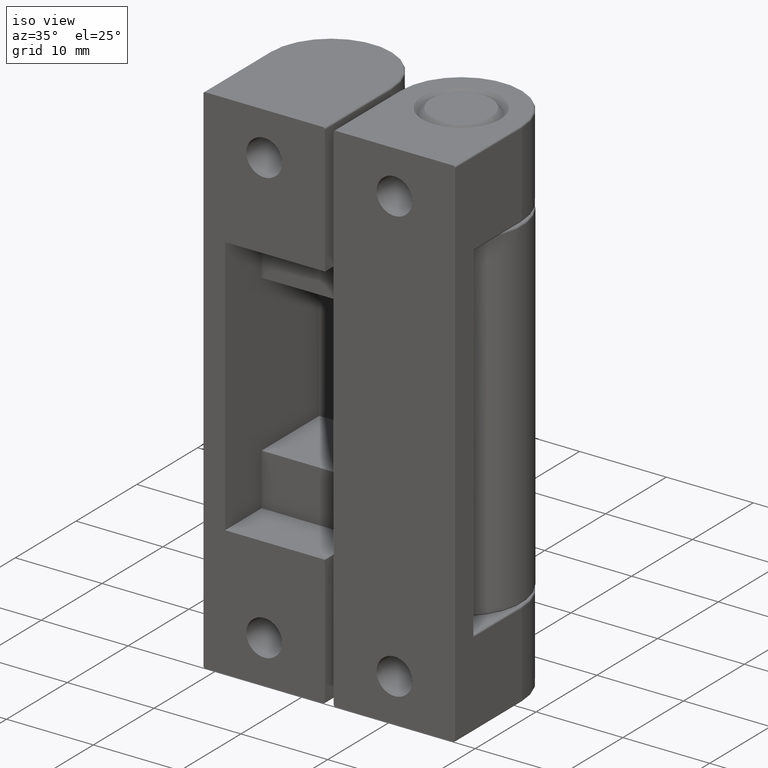
[diagram: clean part render]
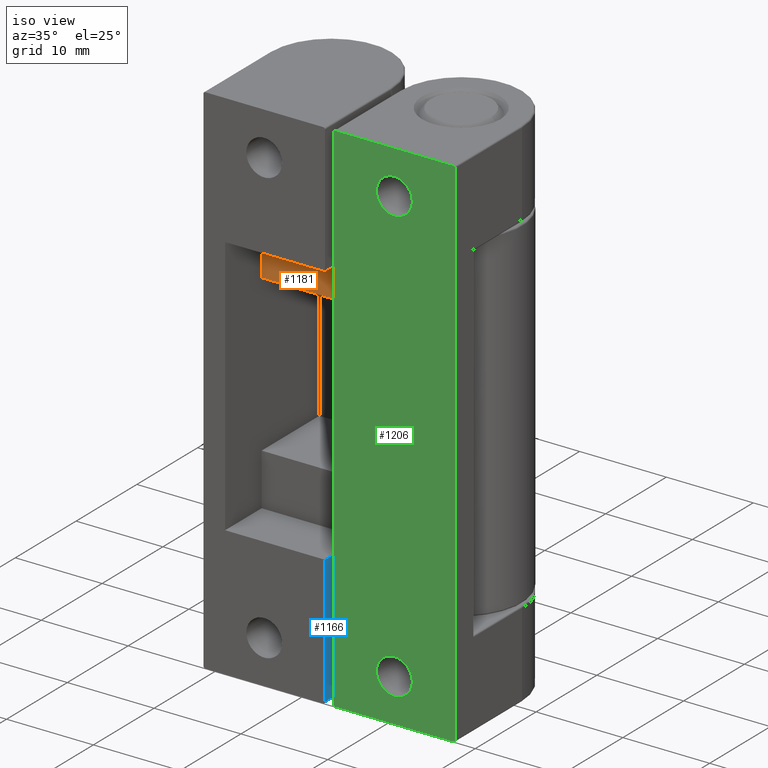
[diagram: same view with three faces highlighted in distinct colors, each labeled with its STEP entity id]
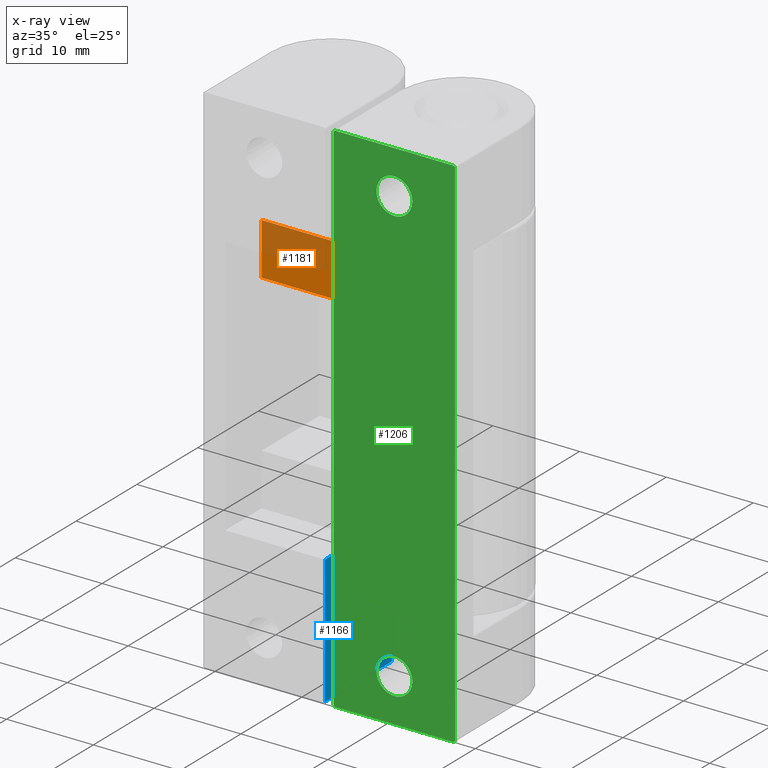
[diagram: x-ray of the same camera — body ghosted, the three highlighted faces saturated]
A machine part, iso view with three faces highlighted in distinct colors.
The next image is the same camera in x-ray (body ghosted, the three faces saturated) — at least one of them is partly hidden behind the body in this view.
Their STEP definitions:

[orange] entity #1181 — the highlighted planar face has unit normal (-0, 1, 0).
#75=PLANE('',#1287);
#131=FACE_OUTER_BOUND('',#205,.T.);
#205=EDGE_LOOP('',(#918,#919,#920,#921));
#320=LINE('',#1924,#411);
#324=LINE('',#1932,#415);
#325=LINE('',#1934,#416);
#326=LINE('',#1935,#417);
#411=VECTOR('',#1533,17.);
#415=VECTOR('',#1541,6.);
#416=VECTOR('',#1542,17.);
#417=VECTOR('',#1543,6.);
#580=VERTEX_POINT('',#1921);
#581=VERTEX_POINT('',#1923);
#583=VERTEX_POINT('',#1931);
#584=VERTEX_POINT('',#1933);
#712=EDGE_CURVE('',#581,#580,#320,.T.);
#716=EDGE_CURVE('',#583,#580,#324,.T.);
#717=EDGE_CURVE('',#584,#583,#325,.T.);
#718=EDGE_CURVE('',#581,#584,#326,.T.);
#918=ORIENTED_EDGE('',*,*,#712,.T.);
#919=ORIENTED_EDGE('',*,*,#716,.F.);
#920=ORIENTED_EDGE('',*,*,#717,.F.);
#921=ORIENTED_EDGE('',*,*,#718,.F.);
#1181=ADVANCED_FACE('',(#131),#75,.F.);
#1287=AXIS2_PLACEMENT_3D('',#1930,#1539,#1540);
#1533=DIRECTION('',(1.,2.77555756156289E-16,0.));
#1539=DIRECTION('center_axis',(-2.77555756156289E-16,1.,0.));
#1540=DIRECTION('ref_axis',(0.,0.,1.));
#1541=DIRECTION('',(0.,0.,-1.));
#1542=DIRECTION('',(1.,3.1720657846433E-16,0.));
#1543=DIRECTION('',(0.,0.,1.));
#1921=CARTESIAN_POINT('',(12.5,6.00000000000001,-21.));
#1923=CARTESIAN_POINT('',(-4.5,6.,-21.));
#1924=CARTESIAN_POINT('',(-0.249999999999999,6.,-21.));
#1930=CARTESIAN_POINT('Origin',(4.,6.,-30.));
#1931=CARTESIAN_POINT('',(12.5,6.00000000000001,-15.));
#1932=CARTESIAN_POINT('',(12.5,6.00000000000001,-15.));
#1933=CARTESIAN_POINT('',(-4.5,6.,-15.));
#1934=CARTESIAN_POINT('',(-4.5,6.,-15.));
#1935=CARTESIAN_POINT('',(-4.5,6.,-45.));

[blue] entity #1166 — the highlighted planar face has unit normal (1, 0, 0).
#68=PLANE('',#1258);
#116=FACE_OUTER_BOUND('',#188,.T.);
#188=EDGE_LOOP('',(#852,#853,#854,#855,#856,#857,#858));
#287=LINE('',#1799,#378);
#296=LINE('',#1845,#387);
#297=LINE('',#1848,#388);
#298=LINE('',#1849,#389);
#299=LINE('',#1851,#390);
#300=LINE('',#1852,#391);
#378=VECTOR('',#1406,4.55000000000001);
#387=VECTOR('',#1453,11.);
#388=VECTOR('',#1456,10.05);
#389=VECTOR('',#1457,6.80000000000001);
#390=VECTOR('',#1458,4.);
#391=VECTOR('',#1459,14.8);
#463=CIRCLE('',#1237,0.2);
#533=VERTEX_POINT('',#1781);
#534=VERTEX_POINT('',#1782);
#540=VERTEX_POINT('',#1797);
#551=VERTEX_POINT('',#1835);
#553=VERTEX_POINT('',#1841);
#555=VERTEX_POINT('',#1847);
#556=VERTEX_POINT('',#1850);
#644=EDGE_CURVE('',#533,#534,#463,.F.);
#653=EDGE_CURVE('',#533,#540,#287,.T.);
#674=EDGE_CURVE('',#551,#553,#296,.T.);
#675=EDGE_CURVE('',#555,#551,#297,.T.);
#676=EDGE_CURVE('',#555,#534,#298,.T.);
#677=EDGE_CURVE('',#540,#556,#299,.T.);
#678=EDGE_CURVE('',#556,#553,#300,.T.);
#852=ORIENTED_EDGE('',*,*,#674,.F.);
#853=ORIENTED_EDGE('',*,*,#675,.F.);
#854=ORIENTED_EDGE('',*,*,#676,.T.);
#855=ORIENTED_EDGE('',*,*,#644,.F.);
#856=ORIENTED_EDGE('',*,*,#653,.T.);
#857=ORIENTED_EDGE('',*,*,#677,.T.);
#858=ORIENTED_EDGE('',*,*,#678,.T.);
#1166=ADVANCED_FACE('',(#116),#68,.T.);
#1237=AXIS2_PLACEMENT_3D('',#1783,#1394,#1395);
#1258=AXIS2_PLACEMENT_3D('',#1846,#1454,#1455);
#1394=DIRECTION('center_axis',(-1.,-6.05576195250086E-16,0.));
#1395=DIRECTION('ref_axis',(0.,-0.707106781186555,-0.70710678118654));
#1406=DIRECTION('',(0.,0.,1.));
#1453=DIRECTION('',(6.05576195250086E-16,-1.,0.));
#1454=DIRECTION('center_axis',(1.,6.05576195250086E-16,0.));
#1455=DIRECTION('ref_axis',(6.21724893790088E-16,-1.,0.));
#1456=DIRECTION('',(0.,0.,-1.));
#1457=DIRECTION('',(6.05576195250086E-16,-1.,0.));
#1458=DIRECTION('',(6.05576195250086E-16,-1.,0.));
#1459=DIRECTION('',(0.,0.,-1.));
#1781=CARTESIAN_POINT('',(7.,4.,-49.55));
#1782=CARTESIAN_POINT('',(7.,4.2,-49.75));
#1783=CARTESIAN_POINT('Origin',(6.99999999999999,4.2,-49.55));
#1797=CARTESIAN_POINT('',(7.,4.,-45.));
#1799=CARTESIAN_POINT('',(7.,4.,-5.125));
#1835=CARTESIAN_POINT('',(6.99999999999999,11.,-59.8));
#1841=CARTESIAN_POINT('',(7.,4.44089209850063E-15,-59.8));
#1845=CARTESIAN_POINT('',(6.99999999999999,8.25,-59.8));
#1846=CARTESIAN_POINT('Origin',(6.99999999999999,11.,0.));
#1847=CARTESIAN_POINT('',(6.99999999999999,11.,-49.75));
#1848=CARTESIAN_POINT('',(6.99999999999999,11.,0.));
#1849=CARTESIAN_POINT('',(6.99999999999999,11.,-49.75));
#1850=CARTESIAN_POINT('',(7.,4.44089209850063E-15,-45.));
#1851=CARTESIAN_POINT('',(7.,5.5,-45.));
#1852=CARTESIAN_POINT('',(7.,4.44089209850063E-15,0.));

[green] entity #1206 — the highlighted planar face has unit normal (0, -1, -0).
#53=FACE_BOUND('',#247,.T.);
#54=FACE_BOUND('',#248,.T.);
#89=PLANE('',#1331);
#156=FACE_OUTER_BOUND('',#246,.T.);
#246=EDGE_LOOP('',(#1042,#1043,#1044,#1045,#1046,#1047,#1048,#1049));
#247=EDGE_LOOP('',(#1050));
#248=EDGE_LOOP('',(#1051));
#341=LINE('',#2058,#432);
#344=LINE('',#2075,#435);
#354=LINE('',#2106,#445);
#356=LINE('',#2115,#447);
#432=VECTOR('',#1606,13.6);
#435=VECTOR('',#1623,13.6);
#445=VECTOR('',#1653,59.6);
#447=VECTOR('',#1665,59.6);
#491=CIRCLE('',#1303,2.067);
#492=CIRCLE('',#1305,2.067);
#501=CIRCLE('',#1321,0.2);
#505=CIRCLE('',#1327,0.2);
#507=CIRCLE('',#1332,0.2);
#508=CIRCLE('',#1333,0.2);
#592=VERTEX_POINT('',#2005);
#594=VERTEX_POINT('',#2043);
#598=VERTEX_POINT('',#2054);
#600=VERTEX_POINT('',#2057);
#605=VERTEX_POINT('',#2071);
#607=VERTEX_POINT('',#2074);
#609=VERTEX_POINT('',#2080);
#612=VERTEX_POINT('',#2090);
#618=VERTEX_POINT('',#2104);
#620=VERTEX_POINT('',#2113);
#735=EDGE_CURVE('',#592,#592,#491,.T.);
#737=EDGE_CURVE('',#594,#594,#492,.T.);
#742=EDGE_CURVE('',#598,#600,#341,.T.);
#749=EDGE_CURVE('',#605,#607,#344,.T.);
#752=EDGE_CURVE('',#600,#609,#501,.T.);
#757=EDGE_CURVE('',#612,#598,#505,.T.);
#765=EDGE_CURVE('',#618,#612,#354,.T.);
#768=EDGE_CURVE('',#607,#618,#507,.T.);
#769=EDGE_CURVE('',#620,#605,#508,.T.);
#770=EDGE_CURVE('',#620,#609,#356,.T.);
#1042=ORIENTED_EDGE('',*,*,#757,.F.);
#1043=ORIENTED_EDGE('',*,*,#765,.F.);
#1044=ORIENTED_EDGE('',*,*,#768,.F.);
#1045=ORIENTED_EDGE('',*,*,#749,.F.);
#1046=ORIENTED_EDGE('',*,*,#769,.F.);
#1047=ORIENTED_EDGE('',*,*,#770,.T.);
#1048=ORIENTED_EDGE('',*,*,#752,.F.);
#1049=ORIENTED_EDGE('',*,*,#742,.F.);
#1050=ORIENTED_EDGE('',*,*,#735,.T.);
#1051=ORIENTED_EDGE('',*,*,#737,.T.);
#1206=ADVANCED_FACE('',(#156,#53,#54),#89,.T.);
#1303=AXIS2_PLACEMENT_3D('',#2006,#1587,#1588);
#1305=AXIS2_PLACEMENT_3D('',#2044,#1591,#1592);
#1321=AXIS2_PLACEMENT_3D('',#2081,#1629,#1630);
#1327=AXIS2_PLACEMENT_3D('',#2091,#1642,#1643);
#1331=AXIS2_PLACEMENT_3D('',#2111,#1659,#1660);
#1332=AXIS2_PLACEMENT_3D('',#2112,#1661,#1662);
#1333=AXIS2_PLACEMENT_3D('',#2114,#1663,#1664);
#1587=DIRECTION('center_axis',(-1.83697019872103E-16,1.,0.));
#1588=DIRECTION('ref_axis',(1.,1.83697019872103E-16,0.));
#1591=DIRECTION('center_axis',(-1.83697019872103E-16,1.,0.));
#1592=DIRECTION('ref_axis',(1.,1.83697019872103E-16,0.));
#1606=DIRECTION('',(-1.,-1.83697019872103E-16,0.));
#1623=DIRECTION('',(1.,1.83697019872103E-16,0.));
#1629=DIRECTION('center_axis',(-1.83697019872103E-16,1.,0.));
#1630=DIRECTION('ref_axis',(-0.707106781186555,0.,-0.70710678118654));
#1642=DIRECTION('center_axis',(-1.83697019872103E-16,1.,0.));
#1643=DIRECTION('ref_axis',(0.707106781186555,0.,-0.70710678118654));
#1653=DIRECTION('',(0.,0.,-1.));
#1659=DIRECTION('center_axis',(1.83697019872103E-16,-1.,0.));
#1660=DIRECTION('ref_axis',(-1.,-1.83697019872103E-16,0.));
#1661=DIRECTION('center_axis',(-1.83697019872103E-16,1.,0.));
#1662=DIRECTION('ref_axis',(0.707106781186548,0.,0.707106781186547));
#1663=DIRECTION('center_axis',(-1.83697019872103E-16,1.,0.));
#1664=DIRECTION('ref_axis',(-0.707106781186548,0.,0.707106781186547));
#1665=DIRECTION('',(0.,0.,-1.));
#2005=CARTESIAN_POINT('',(2.067,1.66558087918036E-15,-5.));
#2006=CARTESIAN_POINT('Origin',(-1.23259516440783E-31,1.66533453693773E-15,
-5.));
#2043=CARTESIAN_POINT('',(2.067,1.66558087918036E-15,-55.));
#2044=CARTESIAN_POINT('Origin',(-1.23259516440783E-31,1.66533453693773E-15,
-55.));
#2054=CARTESIAN_POINT('',(6.8,2.53501887423502E-15,-60.));
#2057=CARTESIAN_POINT('',(-6.8,3.67394039744207E-17,-60.));
#2058=CARTESIAN_POINT('',(-7.,0.,-60.));
#2071=CARTESIAN_POINT('',(-6.8,3.67394039744207E-17,0.));
#2074=CARTESIAN_POINT('',(6.8,2.53501887423502E-15,0.));
#2075=CARTESIAN_POINT('',(-7.,0.,0.));
#2080=CARTESIAN_POINT('',(-7.,0.,-59.8));
#2081=CARTESIAN_POINT('Origin',(-6.8,-2.22044604925031E-15,-59.8));
#2090=CARTESIAN_POINT('',(7.,2.57175827820944E-15,-59.8));
#2091=CARTESIAN_POINT('Origin',(6.8,2.22044604925031E-15,-59.8));
#2104=CARTESIAN_POINT('',(7.,2.57175827820944E-15,-0.2));
#2106=CARTESIAN_POINT('',(7.,2.57175827820944E-15,0.));
#2111=CARTESIAN_POINT('Origin',(7.,2.57175827820944E-15,0.));
#2112=CARTESIAN_POINT('Origin',(6.8,2.22044604925031E-15,-0.2));
#2113=CARTESIAN_POINT('',(-7.,0.,-0.2));
#2114=CARTESIAN_POINT('Origin',(-6.8,-2.22044604925031E-15,-0.2));
#2115=CARTESIAN_POINT('',(-7.,0.,0.));